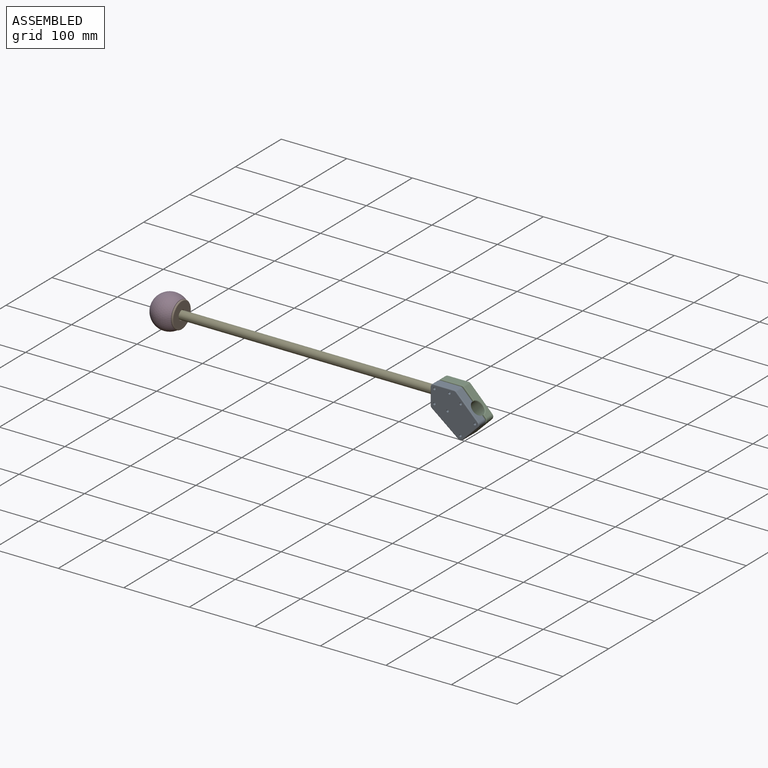
[diagram: assembled view]
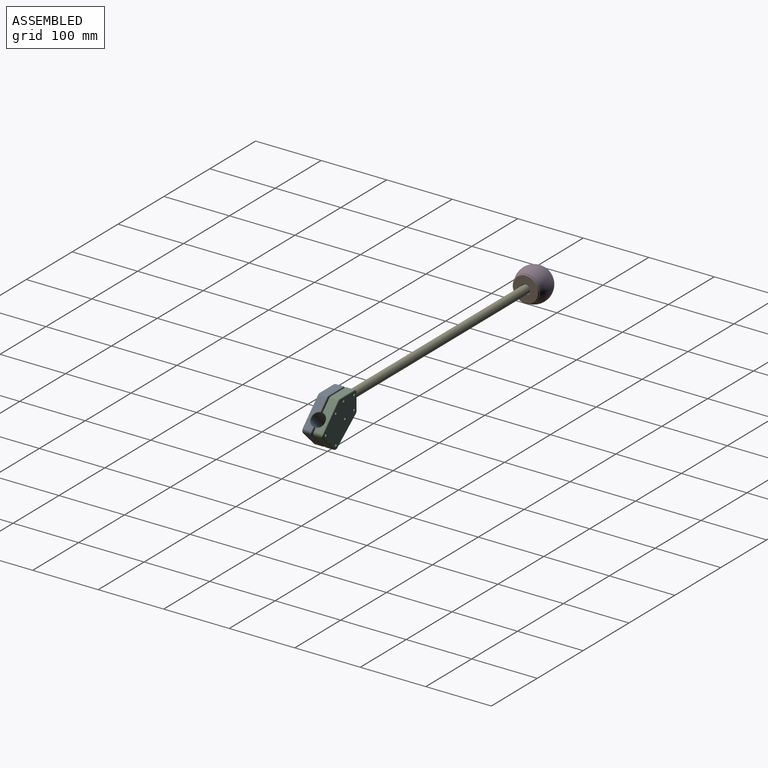
[diagram: assembled view, second angle]
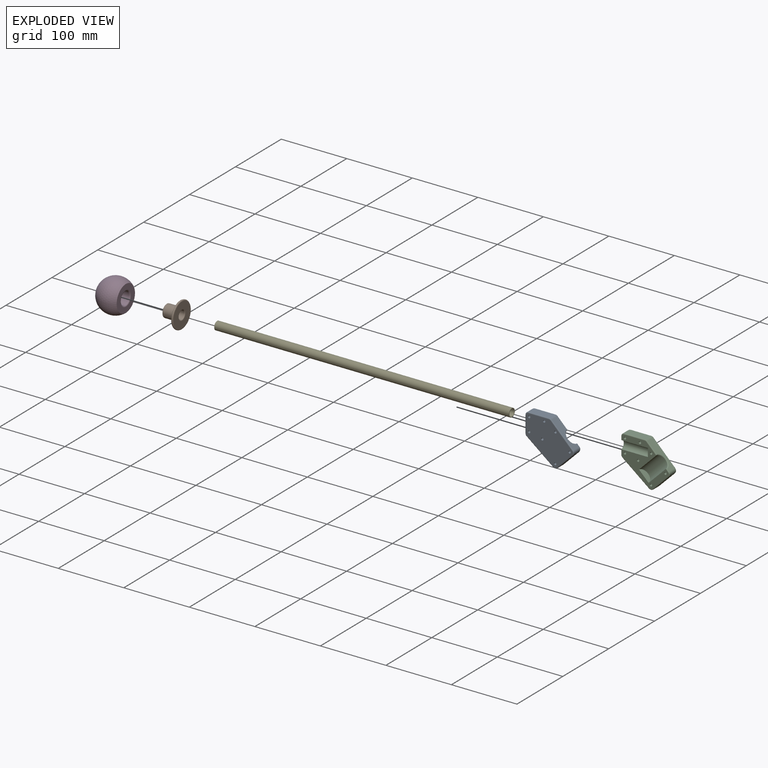
[diagram: exploded view]
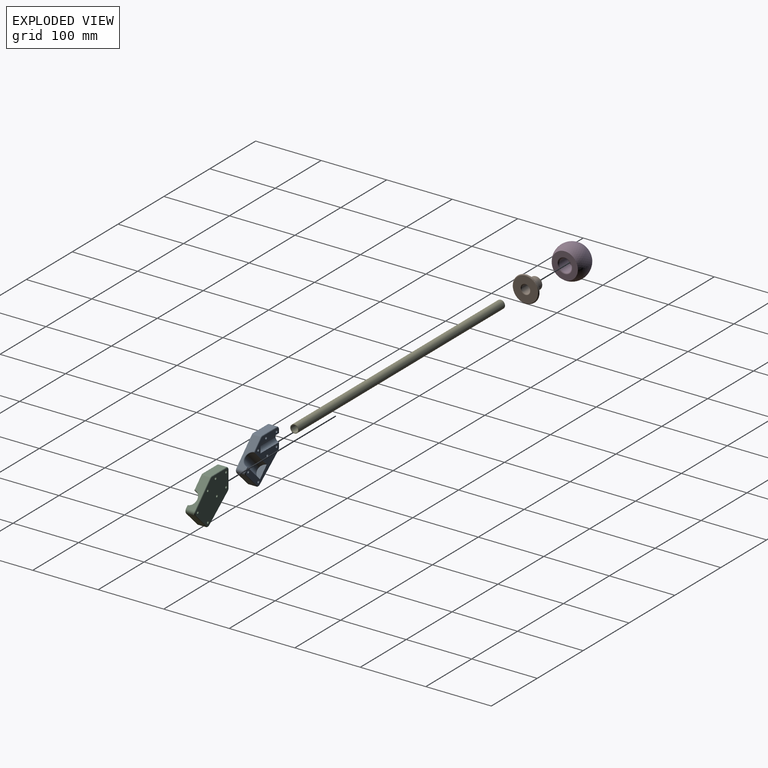
[diagram: exploded view, second angle]
ASSEMBLY  parts=5 mates=6
PART A: 47 faces, bbox 75x15x67.8 mm
  f0: plane 71.64x64.41mm, normal (0,1,0), area 1592.6mm2, adj f7,f8,f9,f10,f11,f12,f13,f14
  f1: plane 40.37x31.69mm, normal (-0.62,0,-0.79), area 639.5mm2, adj f18,f22,f30,f43
  f2: plane 23.81x23.81mm, normal (0.71,0,-0.71), area 419.5mm2, adj f18,f19,f31,f39
  f3: plane 33.15x33.15mm, normal (0.71,0,0.71), area 422.4mm2, adj f19,f20,f27,f33,f34,f35
  f4: plane 31.03x12.46mm, normal (0,0,1), area 386.6mm2, adj f20,f21,f23,f38
  f5: plane 25.27x12.46mm, normal (-1,0,0), area 257.7mm2, adj f21,f22,f26,f42,f44,f46
  f6: plane 71.64x64.41mm, normal (0,-1,0), area 2854.8mm2, adj f11,f12,f13,f14,f15,f16,f17,f23
  f7: cylinder r=6.35mm len=39.76mm, axis (1,0,0), area 713.3mm2, adj f0,f8,f44
  f8: plane 12.54x5.35mm, normal (-1,0,0), area 50.7mm2, adj f0,f7
  f9: cylinder r=10.41mm len=40.7mm, axis (-0.71,0,-0.71), area 1131.2mm2, adj f0,f10,f33
  f10: plane 14.66x14.66mm, normal (0.71,0,0.71), area 149.6mm2, adj f0,f9
  f11: cylinder r=1.83mm len=15mm, axis (0,1,0), area 172.4mm2, adj f0,f6
  f12: cylinder r=1.83mm len=15mm, axis (0,1,0), area 172.4mm2, adj f0,f6
  f13: cylinder r=1.83mm len=15mm, axis (0,1,0), area 172.4mm2, adj f0,f6
  f14: cylinder r=1.83mm len=15mm, axis (0,1,0), area 172.4mm2, adj f0,f6
  f15: cylinder r=1.83mm len=15mm, axis (0,1,0), area 172.4mm2, adj f0,f6
  f16: cylinder r=1.83mm len=15mm, axis (0,1,0), area 172.4mm2, adj f0,f6
  f17: cylinder r=1.83mm len=15mm, axis (0,1,0), area 172.4mm2, adj f0,f6
  f18: cylinder r=5mm len=12.46mm, axis (0,-1,0), area 90.4mm2, adj f1,f2,f32,f41
  f19: cylinder r=5mm len=12.46mm, axis (0,1,0), area 97.9mm2, adj f2,f3,f29,f37
  f20: cylinder r=5mm len=12.46mm, axis (0,1,0), area 48.9mm2, adj f3,f4,f25,f36
  f21: cylinder r=5mm len=12.46mm, axis (0,1,0), area 97.9mm2, adj f4,f5,f24,f40
  f22: cylinder r=5mm len=12.46mm, axis (0,-1,0), area 56.4mm2, adj f1,f5,f28,f45
  f23: cylinder r=1.27mm len=31.03mm, axis (1,0,0), area 61.9mm2, adj f4,f6,f24,f25
  f24: torus R=3.73mm, axis (0,-1,0), area 14.2mm2, adj f6,f21,f23,f26
  f25: torus R=3.73mm, axis (0,-1,0), area 7.1mm2, adj f6,f20,f23,f27
  f26: cylinder r=1.27mm len=25.27mm, axis (0,0,1), area 50.4mm2, adj f5,f6,f24,f28
  f27: cylinder r=1.27mm len=34.05mm, axis (0.71,0,-0.71), area 93.5mm2, adj f3,f6,f25,f29
  f28: torus R=3.73mm, axis (0,-1,0), area 8.2mm2, adj f6,f22,f26,f30
  f29: torus R=3.73mm, axis (0,-1,0), area 14.2mm2, adj f6,f19,f27,f31
  f30: cylinder r=1.27mm len=41.16mm, axis (-0.79,0,0.62), area 102.4mm2, adj f1,f6,f28,f32
  f31: cylinder r=1.27mm len=24.7mm, axis (-0.71,0,-0.71), area 67.2mm2, adj f2,f6,f29,f32
  f32: torus R=3.73mm, axis (0,-1,0), area 13.1mm2, adj f6,f18,f30,f31
  f33: torus R=11.68mm, axis (-0.71,0,-0.71), area 62.3mm2, adj f3,f9,f34,f35
  f34: cylinder r=1.27mm len=15.82mm, axis (-0.71,0,0.71), area 41.3mm2, adj f0,f3,f33,f36
  f35: cylinder r=1.27mm len=4.47mm, axis (-0.71,0,0.71), area 9.3mm2, adj f0,f3,f33,f37
  f36: torus R=3.73mm, axis (0,-1,0), area 7.1mm2, adj f0,f20,f34,f38
  f37: torus R=3.73mm, axis (0,-1,0), area 14.2mm2, adj f0,f19,f35,f39
  f38: cylinder r=1.27mm len=31.03mm, axis (-1,0,0), area 61.9mm2, adj f0,f4,f36,f40
  f39: cylinder r=1.27mm len=24.7mm, axis (0.71,0,0.71), area 67.2mm2, adj f0,f2,f37,f41
  f40: torus R=3.73mm, axis (0,-1,0), area 14.2mm2, adj f0,f21,f38,f42
  f41: torus R=3.73mm, axis (0,-1,0), area 13.1mm2, adj f0,f18,f39,f43
  f42: cylinder r=1.27mm len=5.08mm, axis (0,0,-1), area 9.4mm2, adj f0,f5,f40,f44
  f43: cylinder r=1.27mm len=41.16mm, axis (0.79,0,-0.62), area 102.4mm2, adj f0,f1,f41,f45
  f44: torus R=7.62mm, axis (1,0,0), area 36.8mm2, adj f5,f7,f42,f46
  f45: torus R=3.73mm, axis (0,-1,0), area 8.2mm2, adj f0,f22,f43,f46
  f46: cylinder r=1.27mm len=7.65mm, axis (0,0,-1), area 14.5mm2, adj f0,f5,f44,f45
PART B: 12 faces, bbox 23.7x43.3x43.3 mm
  f0: plane 12.95x12.95mm, normal (1,0,0), area 131.8mm2, adj f1
  f1: cylinder r=6.48mm len=17.39mm, axis (1,0,0), area 707.6mm2, adj f0,f8
  f2: plane 37.46x37.46mm, normal (1,0,0), area 913.6mm2, adj f8,f9
  f3: cylinder r=20mm len=40mm, axis (1,0,0), area 57.8mm2, adj f9,f10
  f4: plane 37.46x37.46mm, normal (-1,0,0), area 675.6mm2, adj f5,f10
  f5: torus R=11.65mm, axis (1,0,0), area 204.9mm2, adj f4,f6
  f6: cylinder r=9.65mm len=19.3mm, axis (1,0,0), area 1054.5mm2, adj f5,f11
  f7: plane 16.76x16.76mm, normal (-1,0,0), area 220.7mm2, adj f11
  f8: torus R=7.75mm, axis (1,0,0), area 87mm2, adj f1,f2
  f9: torus R=18.73mm, axis (1,0,0), area 244.9mm2, adj f2,f3
  f10: torus R=18.73mm, axis (1,0,0), area 244.9mm2, adj f3,f4
  f11: torus R=8.38mm, axis (1,0,0), area 115.2mm2, adj f6,f7
PART C: 47 faces, bbox 75x15x67.8 mm
  f0: plane 71.64x64.41mm, normal (0,-1,0), area 1592.6mm2, adj f7,f8,f9,f10,f11,f12,f13,f14
  f1: plane 40.37x31.69mm, normal (-0.62,0,-0.79), area 639.5mm2, adj f18,f22,f30,f43
  f2: plane 23.81x23.81mm, normal (0.71,0,-0.71), area 419.5mm2, adj f18,f19,f31,f39
  f3: plane 33.15x33.15mm, normal (0.71,0,0.71), area 422.4mm2, adj f19,f20,f27,f33,f34,f35
  f4: plane 31.03x12.46mm, normal (0,0,1), area 386.6mm2, adj f20,f21,f23,f38
  f5: plane 25.27x12.46mm, normal (-1,0,0), area 257.7mm2, adj f21,f22,f26,f42,f44,f46
  f6: plane 71.64x64.41mm, normal (0,1,0), area 2854.8mm2, adj f11,f12,f13,f14,f15,f16,f17,f23
  f7: cylinder r=6.35mm len=39.76mm, axis (1,0,0), area 713.3mm2, adj f0,f8,f44
  f8: plane 12.54x5.35mm, normal (-1,0,0), area 50.7mm2, adj f0,f7
  f9: cylinder r=10.41mm len=40.7mm, axis (-0.71,0,-0.71), area 1131.2mm2, adj f0,f10,f33
  f10: plane 14.66x14.66mm, normal (0.71,0,0.71), area 149.6mm2, adj f0,f9
  f11: cylinder r=1.83mm len=15mm, axis (0,-1,0), area 172.4mm2, adj f0,f6
  f12: cylinder r=1.83mm len=15mm, axis (0,-1,0), area 172.4mm2, adj f0,f6
  f13: cylinder r=1.83mm len=15mm, axis (0,-1,0), area 172.4mm2, adj f0,f6
  f14: cylinder r=1.83mm len=15mm, axis (0,-1,0), area 172.4mm2, adj f0,f6
  f15: cylinder r=1.83mm len=15mm, axis (0,-1,0), area 172.4mm2, adj f0,f6
  f16: cylinder r=1.83mm len=15mm, axis (0,-1,0), area 172.4mm2, adj f0,f6
  f17: cylinder r=1.83mm len=15mm, axis (0,-1,0), area 172.4mm2, adj f0,f6
  f18: cylinder r=5mm len=12.46mm, axis (0,1,0), area 90.4mm2, adj f1,f2,f32,f41
  f19: cylinder r=5mm len=12.46mm, axis (0,-1,0), area 97.9mm2, adj f2,f3,f29,f37
  f20: cylinder r=5mm len=12.46mm, axis (0,-1,0), area 48.9mm2, adj f3,f4,f25,f36
  f21: cylinder r=5mm len=12.46mm, axis (0,-1,0), area 97.9mm2, adj f4,f5,f24,f40
  f22: cylinder r=5mm len=12.46mm, axis (0,1,0), area 56.4mm2, adj f1,f5,f28,f45
  f23: cylinder r=1.27mm len=31.03mm, axis (1,0,0), area 61.9mm2, adj f4,f6,f24,f25
  f24: torus R=3.73mm, axis (0,1,0), area 14.2mm2, adj f6,f21,f23,f26
  f25: torus R=3.73mm, axis (0,1,0), area 7.1mm2, adj f6,f20,f23,f27
  f26: cylinder r=1.27mm len=25.27mm, axis (0,0,1), area 50.4mm2, adj f5,f6,f24,f28
  f27: cylinder r=1.27mm len=34.05mm, axis (0.71,0,-0.71), area 93.5mm2, adj f3,f6,f25,f29
  f28: torus R=3.73mm, axis (0,1,0), area 8.2mm2, adj f6,f22,f26,f30
  f29: torus R=3.73mm, axis (0,1,0), area 14.2mm2, adj f6,f19,f27,f31
  f30: cylinder r=1.27mm len=41.16mm, axis (-0.79,0,0.62), area 102.4mm2, adj f1,f6,f28,f32
  f31: cylinder r=1.27mm len=24.7mm, axis (-0.71,0,-0.71), area 67.2mm2, adj f2,f6,f29,f32
  f32: torus R=3.73mm, axis (0,1,0), area 13.1mm2, adj f6,f18,f30,f31
  f33: torus R=11.68mm, axis (-0.71,0,-0.71), area 62.3mm2, adj f3,f9,f34,f35
  f34: cylinder r=1.27mm len=15.82mm, axis (-0.71,0,0.71), area 41.3mm2, adj f0,f3,f33,f36
  f35: cylinder r=1.27mm len=4.47mm, axis (-0.71,0,0.71), area 9.3mm2, adj f0,f3,f33,f37
  f36: torus R=3.73mm, axis (0,1,0), area 7.1mm2, adj f0,f20,f34,f38
  f37: torus R=3.73mm, axis (0,1,0), area 14.2mm2, adj f0,f19,f35,f39
  f38: cylinder r=1.27mm len=31.03mm, axis (-1,0,0), area 61.9mm2, adj f0,f4,f36,f40
  f39: cylinder r=1.27mm len=24.7mm, axis (0.71,0,0.71), area 67.2mm2, adj f0,f2,f37,f41
  f40: torus R=3.73mm, axis (0,1,0), area 14.2mm2, adj f0,f21,f38,f42
  f41: torus R=3.73mm, axis (0,1,0), area 13.1mm2, adj f0,f18,f39,f43
  f42: cylinder r=1.27mm len=5.08mm, axis (0,0,-1), area 9.4mm2, adj f0,f5,f40,f44
  f43: cylinder r=1.27mm len=41.16mm, axis (0.79,0,-0.62), area 102.4mm2, adj f0,f1,f41,f45
  f44: torus R=7.62mm, axis (1,0,0), area 36.8mm2, adj f5,f7,f42,f46
  f45: torus R=3.73mm, axis (0,1,0), area 8.2mm2, adj f0,f22,f43,f46
  f46: cylinder r=1.27mm len=7.65mm, axis (0,0,-1), area 14.5mm2, adj f0,f5,f44,f45
PART D: 5 faces, bbox 41.1x50.8x50.8 mm
  f0: plane 19.3x19.3mm, normal (1,0,0), area 292.7mm2, adj f1
  f1: cylinder r=9.65mm len=19.3mm, axis (1,0,0), area 1131.5mm2, adj f0,f2
  f2: torus R=11.65mm, axis (1,0,0), area 204.9mm2, adj f1,f3
  f3: plane 40x40mm, normal (1,0,0), area 830.1mm2, adj f2,f4
  f4: sphere r=25.4mm, area 6552.5mm2, adj f3
PART E: 4 faces, bbox 450x12.7x12.7 mm
  f0: plane 12.7x12.7mm, normal (-1,0,0), area 33mm2, adj f1,f3
  f1: cylinder r=5.46mm len=450mm, axis (1,0,0), area 15440.6mm2, adj f0,f2
  f2: plane 12.7x12.7mm, normal (1,0,0), area 33mm2, adj f1,f3
  f3: cylinder r=6.35mm len=450mm, axis (1,0,0), area 17954.2mm2, adj f0,f2
PLACE A at identity
PLACE B at identity
PLACE C at identity
PLACE D rot(axis=(-1,0,0),90deg) t=(0,0,0)mm
PLACE E at identity fixed
MATE planar D.f1 <-> B.f1  axis (1,0,0) through (-434.34,0,0)mm
MATE cylindrical B.f1 <-> D.f1  axis (1,0,0) through (-445.04,0,0)mm
MATE revolute C.f7 <-> E.f1  axis (1,0,0) through (0,0,0)mm
MATE parallel C.f0 <-> A.f0  axis (0,-1,0) through (-9.3,1,-14.41)mm
MATE revolute B.f1 <-> E.f1  axis (1,0,0) through (-450,0,0)mm
MATE revolute A.f7 <-> E.f1  axis (1,0,0) through (0,0,0)mm
